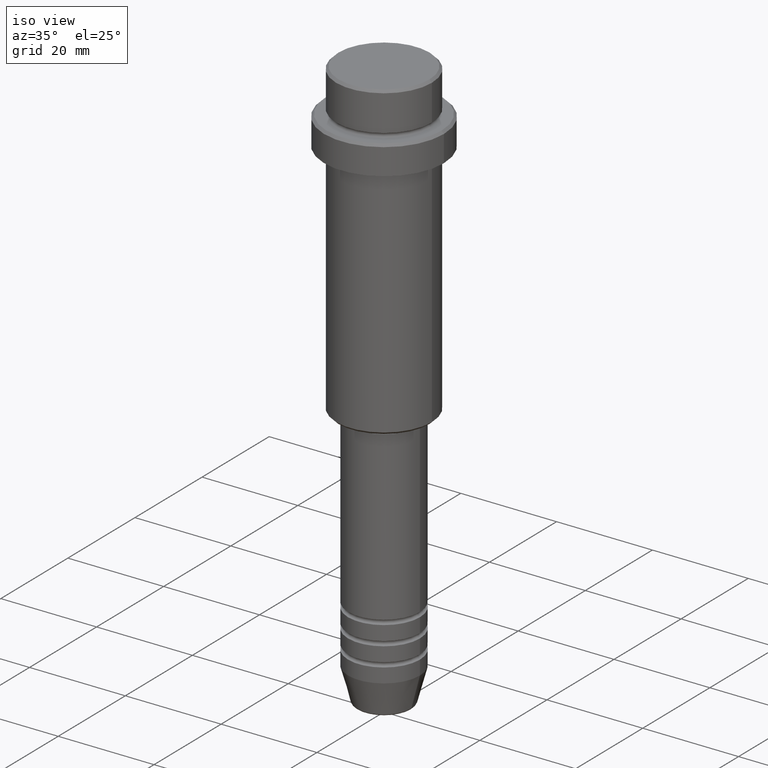
[diagram: clean part render]
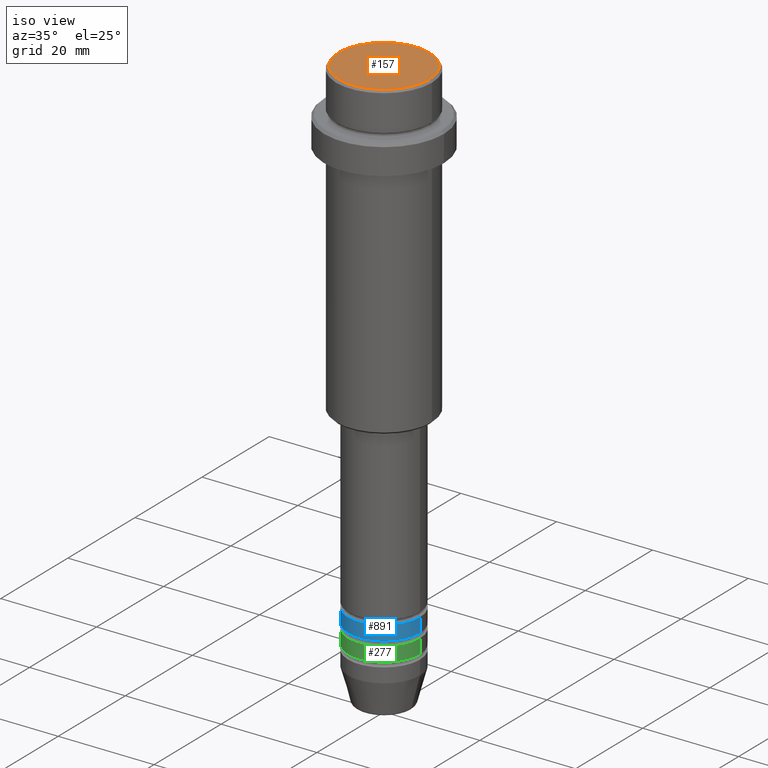
[diagram: same view with three faces highlighted in distinct colors, each labeled with its STEP entity id]
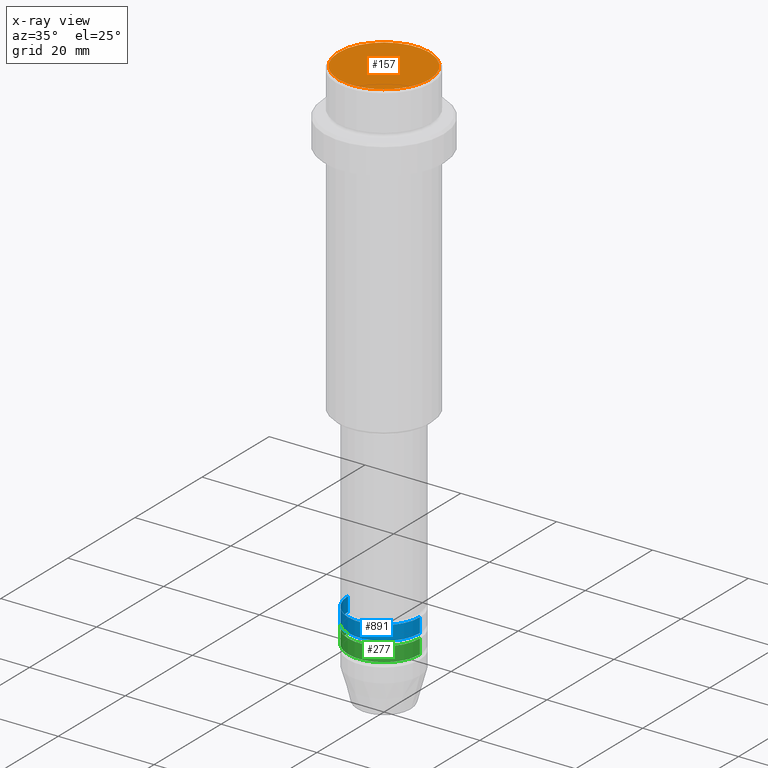
[diagram: x-ray of the same camera — body ghosted, the three highlighted faces saturated]
A machine part, iso view with three faces highlighted in distinct colors.
The next image is the same camera in x-ray (body ghosted, the three faces saturated) — at least one of them is partly hidden behind the body in this view.
Their STEP definitions:

[orange] entity #157 — the highlighted planar face has unit normal (0, -0, 1).
#64 = DIRECTION ( 'NONE',  ( 1.000000000000000000, 0.000000000000000000, 0.000000000000000000 ) ) ;
#67 = CARTESIAN_POINT ( 'NONE',  ( 0.000000000000000000, 0.000000000000000000, 0.000000000000000000 ) ) ;
#157 = ADVANCED_FACE ( 'NONE', ( #1146 ), #472, .T. ) ;
#163 = DIRECTION ( 'NONE',  ( 0.000000000000000000, -0.000000000000000000, 1.000000000000000000 ) ) ;
#236 = CARTESIAN_POINT ( 'NONE',  ( 0.000000000000000000, 0.000000000000000000, 0.000000000000000000 ) ) ;
#305 = AXIS2_PLACEMENT_3D ( 'NONE', #67, #163, #804 ) ;
#382 = VERTEX_POINT ( 'NONE', #659 ) ;
#399 = CARTESIAN_POINT ( 'NONE',  ( 0.000000000000000000, 0.000000000000000000, 0.000000000000000000 ) ) ;
#412 = CARTESIAN_POINT ( 'NONE',  ( 9.500000000000023093, 1.194030629168670653E-15, 0.000000000000000000 ) ) ;
#472 = PLANE ( 'NONE',  #305 ) ;
#617 = DIRECTION ( 'NONE',  ( -0.000000000000000000, -0.000000000000000000, 1.000000000000000000 ) ) ;
#659 = CARTESIAN_POINT ( 'NONE',  ( -9.500000000000023093, 0.000000000000000000, 0.000000000000000000 ) ) ;
#674 = AXIS2_PLACEMENT_3D ( 'NONE', #236, #1003, #1304 ) ;
#706 = ORIENTED_EDGE ( 'NONE', *, *, #854, .T. ) ;
#712 = EDGE_LOOP ( 'NONE', ( #706, #831 ) ) ;
#804 = DIRECTION ( 'NONE',  ( 1.000000000000000000, 0.000000000000000000, 0.000000000000000000 ) ) ;
#831 = ORIENTED_EDGE ( 'NONE', *, *, #1273, .T. ) ;
#854 = EDGE_CURVE ( 'NONE', #382, #1100, #1296, .T. ) ;
#1003 = DIRECTION ( 'NONE',  ( -0.000000000000000000, -0.000000000000000000, 1.000000000000000000 ) ) ;
#1045 = AXIS2_PLACEMENT_3D ( 'NONE', #399, #617, #64 ) ;
#1100 = VERTEX_POINT ( 'NONE', #412 ) ;
#1146 = FACE_OUTER_BOUND ( 'NONE', #712, .T. ) ;
#1273 = EDGE_CURVE ( 'NONE', #1100, #382, #1298, .T. ) ;
#1296 = CIRCLE ( 'NONE', #1045, 9.500000000000023093 ) ;
#1298 = CIRCLE ( 'NONE', #674, 9.500000000000023093 ) ;
#1304 = DIRECTION ( 'NONE',  ( 1.000000000000000000, 0.000000000000000000, 0.000000000000000000 ) ) ;

[blue] entity #891 — the highlighted cylindrical surface (partial cylindrical patch) has radius 7.5 mm, axis along (-0, -0, 1).
#6 = LINE ( 'NONE', #879, #241 ) ;
#60 = CIRCLE ( 'NONE', #582, 7.500000000000000000 ) ;
#68 = ORIENTED_EDGE ( 'NONE', *, *, #575, .T. ) ;
#86 = AXIS2_PLACEMENT_3D ( 'NONE', #1083, #1306, #1314 ) ;
#91 = EDGE_LOOP ( 'NONE', ( #1353, #961, #68, #802 ) ) ;
#106 = VECTOR ( 'NONE', #249, 1000.000000000000000 ) ;
#161 = CARTESIAN_POINT ( 'NONE',  ( 0.000000000000000000, 0.000000000000000000, -101.9999999999999005 ) ) ;
#205 = DIRECTION ( 'NONE',  ( 1.000000000000000000, 0.000000000000000000, 0.000000000000000000 ) ) ;
#234 = LINE ( 'NONE', #912, #106 ) ;
#241 = VECTOR ( 'NONE', #662, 1000.000000000000000 ) ;
#249 = DIRECTION ( 'NONE',  ( -0.000000000000000000, -0.000000000000000000, 1.000000000000000000 ) ) ;
#261 = CARTESIAN_POINT ( 'NONE',  ( 7.500000000000000000, 0.000000000000000000, -101.9999999999999005 ) ) ;
#280 = DIRECTION ( 'NONE',  ( -0.000000000000000000, -0.000000000000000000, 1.000000000000000000 ) ) ;
#302 = CYLINDRICAL_SURFACE ( 'NONE', #1162, 7.500000000000000000 ) ;
#414 = CARTESIAN_POINT ( 'NONE',  ( 0.000000000000000000, 0.000000000000000000, 0.000000000000000000 ) ) ;
#446 = CARTESIAN_POINT ( 'NONE',  ( 7.500000000000000000, 0.000000000000000000, -104.9999999999999005 ) ) ;
#468 = CARTESIAN_POINT ( 'NONE',  ( -7.500000000000000000, 9.184850993605147944E-16, -104.9999999999999005 ) ) ;
#575 = EDGE_CURVE ( 'NONE', #1019, #605, #6, .T. ) ;
#582 = AXIS2_PLACEMENT_3D ( 'NONE', #161, #280, #594 ) ;
#594 = DIRECTION ( 'NONE',  ( 1.000000000000000000, 0.000000000000000000, 0.000000000000000000 ) ) ;
#605 = VERTEX_POINT ( 'NONE', #261 ) ;
#618 = EDGE_CURVE ( 'NONE', #630, #845, #234, .T. ) ;
#630 = VERTEX_POINT ( 'NONE', #468 ) ;
#662 = DIRECTION ( 'NONE',  ( -0.000000000000000000, -0.000000000000000000, 1.000000000000000000 ) ) ;
#802 = ORIENTED_EDGE ( 'NONE', *, *, #818, .F. ) ;
#818 = EDGE_CURVE ( 'NONE', #845, #605, #60, .T. ) ;
#845 = VERTEX_POINT ( 'NONE', #1256 ) ;
#879 = CARTESIAN_POINT ( 'NONE',  ( 7.500000000000000000, 0.000000000000000000, 0.000000000000000000 ) ) ;
#891 = ADVANCED_FACE ( 'NONE', ( #1196 ), #302, .T. ) ;
#912 = CARTESIAN_POINT ( 'NONE',  ( -7.500000000000000000, 9.184850993605147944E-16, 0.000000000000000000 ) ) ;
#961 = ORIENTED_EDGE ( 'NONE', *, *, #1073, .T. ) ;
#1019 = VERTEX_POINT ( 'NONE', #446 ) ;
#1073 = EDGE_CURVE ( 'NONE', #630, #1019, #1320, .T. ) ;
#1083 = CARTESIAN_POINT ( 'NONE',  ( 0.000000000000000000, 0.000000000000000000, -104.9999999999999005 ) ) ;
#1162 = AXIS2_PLACEMENT_3D ( 'NONE', #414, #1292, #205 ) ;
#1196 = FACE_OUTER_BOUND ( 'NONE', #91, .T. ) ;
#1256 = CARTESIAN_POINT ( 'NONE',  ( -7.500000000000000000, 9.184850993605147944E-16, -101.9999999999999005 ) ) ;
#1292 = DIRECTION ( 'NONE',  ( -0.000000000000000000, -0.000000000000000000, 1.000000000000000000 ) ) ;
#1306 = DIRECTION ( 'NONE',  ( -0.000000000000000000, -0.000000000000000000, 1.000000000000000000 ) ) ;
#1314 = DIRECTION ( 'NONE',  ( 1.000000000000000000, 0.000000000000000000, 0.000000000000000000 ) ) ;
#1320 = CIRCLE ( 'NONE', #86, 7.500000000000000000 ) ;
#1353 = ORIENTED_EDGE ( 'NONE', *, *, #618, .F. ) ;

[green] entity #277 — the highlighted cylindrical surface (partial cylindrical patch) has radius 7.5 mm, axis along (-0, -0, 1).
#27 = EDGE_CURVE ( 'NONE', #498, #29, #182, .T. ) ;
#29 = VERTEX_POINT ( 'NONE', #1376 ) ;
#74 = DIRECTION ( 'NONE',  ( -0.000000000000000000, -0.000000000000000000, 1.000000000000000000 ) ) ;
#95 = DIRECTION ( 'NONE',  ( -0.000000000000000000, -0.000000000000000000, 1.000000000000000000 ) ) ;
#158 = EDGE_LOOP ( 'NONE', ( #945, #1004, #572, #616 ) ) ;
#171 = AXIS2_PLACEMENT_3D ( 'NONE', #186, #74, #523 ) ;
#174 = AXIS2_PLACEMENT_3D ( 'NONE', #1233, #765, #897 ) ;
#182 = LINE ( 'NONE', #396, #807 ) ;
#186 = CARTESIAN_POINT ( 'NONE',  ( 0.000000000000000000, 0.000000000000000000, 0.000000000000000000 ) ) ;
#200 = CARTESIAN_POINT ( 'NONE',  ( 0.000000000000000000, 0.000000000000000000, -105.9999999999999005 ) ) ;
#277 = ADVANCED_FACE ( 'NONE', ( #965 ), #730, .T. ) ;
#396 = CARTESIAN_POINT ( 'NONE',  ( -7.500000000000000000, 9.184850993605147944E-16, 0.000000000000000000 ) ) ;
#429 = DIRECTION ( 'NONE',  ( -0.000000000000000000, -0.000000000000000000, 1.000000000000000000 ) ) ;
#450 = CARTESIAN_POINT ( 'NONE',  ( 7.500000000000000000, 0.000000000000000000, -105.9999999999999005 ) ) ;
#498 = VERTEX_POINT ( 'NONE', #554 ) ;
#523 = DIRECTION ( 'NONE',  ( 1.000000000000000000, 0.000000000000000000, 0.000000000000000000 ) ) ;
#533 = EDGE_CURVE ( 'NONE', #498, #670, #560, .T. ) ;
#540 = AXIS2_PLACEMENT_3D ( 'NONE', #200, #429, #770 ) ;
#554 = CARTESIAN_POINT ( 'NONE',  ( -7.500000000000000000, 9.184850993605147944E-16, -108.9999999999999005 ) ) ;
#560 = CIRCLE ( 'NONE', #174, 7.500000000000000000 ) ;
#572 = ORIENTED_EDGE ( 'NONE', *, *, #1165, .T. ) ;
#616 = ORIENTED_EDGE ( 'NONE', *, *, #1007, .F. ) ;
#670 = VERTEX_POINT ( 'NONE', #1332 ) ;
#730 = CYLINDRICAL_SURFACE ( 'NONE', #171, 7.500000000000000000 ) ;
#746 = VECTOR ( 'NONE', #95, 1000.000000000000000 ) ;
#765 = DIRECTION ( 'NONE',  ( -0.000000000000000000, -0.000000000000000000, 1.000000000000000000 ) ) ;
#770 = DIRECTION ( 'NONE',  ( 1.000000000000000000, 0.000000000000000000, 0.000000000000000000 ) ) ;
#807 = VECTOR ( 'NONE', #1156, 1000.000000000000000 ) ;
#844 = CARTESIAN_POINT ( 'NONE',  ( 7.500000000000000000, 0.000000000000000000, 0.000000000000000000 ) ) ;
#897 = DIRECTION ( 'NONE',  ( 1.000000000000000000, 0.000000000000000000, 0.000000000000000000 ) ) ;
#945 = ORIENTED_EDGE ( 'NONE', *, *, #27, .F. ) ;
#965 = FACE_OUTER_BOUND ( 'NONE', #158, .T. ) ;
#1004 = ORIENTED_EDGE ( 'NONE', *, *, #533, .T. ) ;
#1007 = EDGE_CURVE ( 'NONE', #29, #1228, #1275, .T. ) ;
#1156 = DIRECTION ( 'NONE',  ( -0.000000000000000000, -0.000000000000000000, 1.000000000000000000 ) ) ;
#1165 = EDGE_CURVE ( 'NONE', #670, #1228, #1394, .T. ) ;
#1228 = VERTEX_POINT ( 'NONE', #450 ) ;
#1233 = CARTESIAN_POINT ( 'NONE',  ( 0.000000000000000000, 0.000000000000000000, -108.9999999999999005 ) ) ;
#1275 = CIRCLE ( 'NONE', #540, 7.500000000000000000 ) ;
#1332 = CARTESIAN_POINT ( 'NONE',  ( 7.500000000000000000, 0.000000000000000000, -108.9999999999999005 ) ) ;
#1376 = CARTESIAN_POINT ( 'NONE',  ( -7.500000000000000000, 9.184850993605147944E-16, -105.9999999999999005 ) ) ;
#1394 = LINE ( 'NONE', #844, #746 ) ;